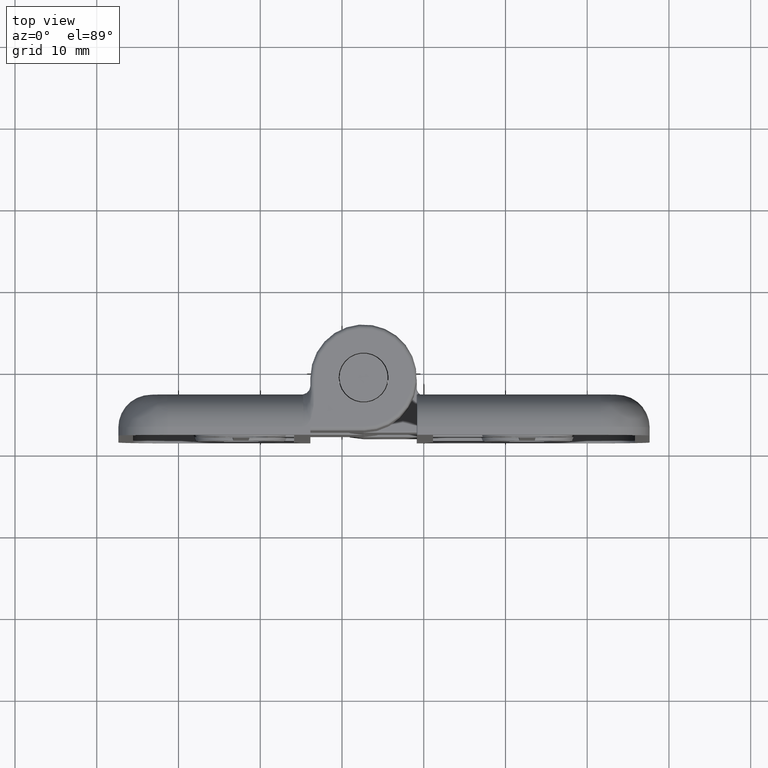
[diagram: clean part render]
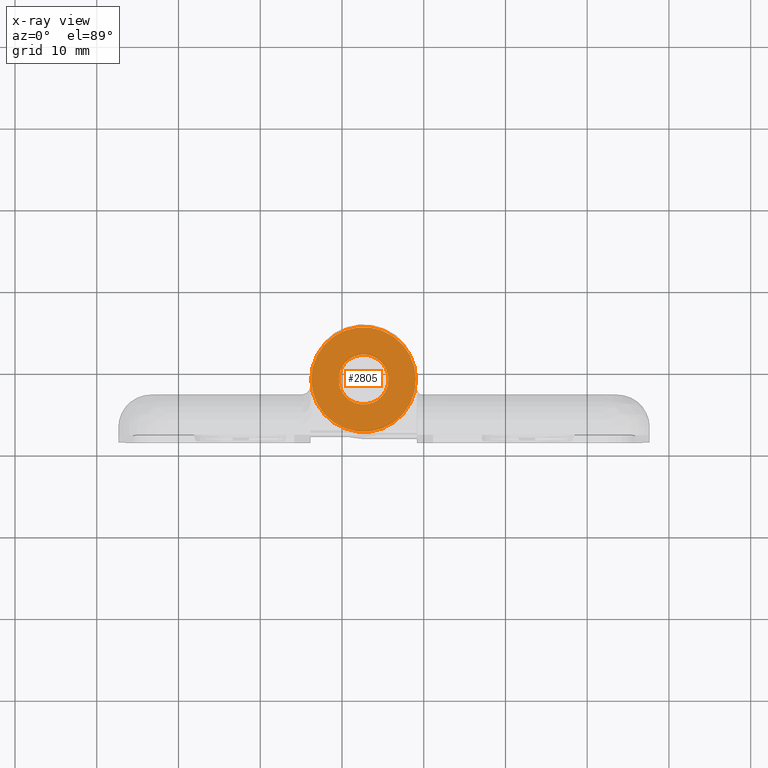
[diagram: x-ray — body ghosted, one internal face saturated and labeled with its STEP entity id]
A machine part, top view, then the same camera in x-ray: the body is ghosted and one INTERNAL B-rep face — a face not visible from any outside direction — is saturated and labeled: STEP entity #2805.
In plain terms, the highlighted planar face has unit normal (0, -0, -1).
Its self-contained STEP definition (entity closure, byte-faithful):
#102=FACE_BOUND('',#743,.T.);
#178=PLANE('',#3143);
#337=CIRCLE('',#3137,3.05);
#340=CIRCLE('',#3142,6.4);
#535=FACE_OUTER_BOUND('',#742,.T.);
#742=EDGE_LOOP('',(#2565));
#743=EDGE_LOOP('',(#2566));
#1389=VERTEX_POINT('',#5725);
#1392=VERTEX_POINT('',#5733);
#1781=EDGE_CURVE('',#1389,#1389,#337,.T.);
#1784=EDGE_CURVE('',#1392,#1392,#340,.T.);
#2565=ORIENTED_EDGE('',*,*,#1784,.F.);
#2566=ORIENTED_EDGE('',*,*,#1781,.T.);
#2805=ADVANCED_FACE('',(#535,#102),#178,.F.);
#3137=AXIS2_PLACEMENT_3D('',#5726,#3983,#3984);
#3142=AXIS2_PLACEMENT_3D('',#5734,#3993,#3994);
#3143=AXIS2_PLACEMENT_3D('',#5735,#3995,#3996);
#3983=DIRECTION('center_axis',(0.,0.,-1.));
#3984=DIRECTION('ref_axis',(-1.,0.,0.));
#3993=DIRECTION('center_axis',(0.,0.,-1.));
#3994=DIRECTION('ref_axis',(-1.,0.,0.));
#3995=DIRECTION('center_axis',(0.,0.,-1.));
#3996=DIRECTION('ref_axis',(-1.,0.,0.));
#5725=CARTESIAN_POINT('',(3.05,3.73517273739943E-16,0.5));
#5726=CARTESIAN_POINT('Origin',(0.,0.,0.5));
#5733=CARTESIAN_POINT('',(6.4,7.83773951454306E-16,0.5));
#5734=CARTESIAN_POINT('Origin',(0.,0.,0.5));
#5735=CARTESIAN_POINT('Origin',(0.,0.,0.5));